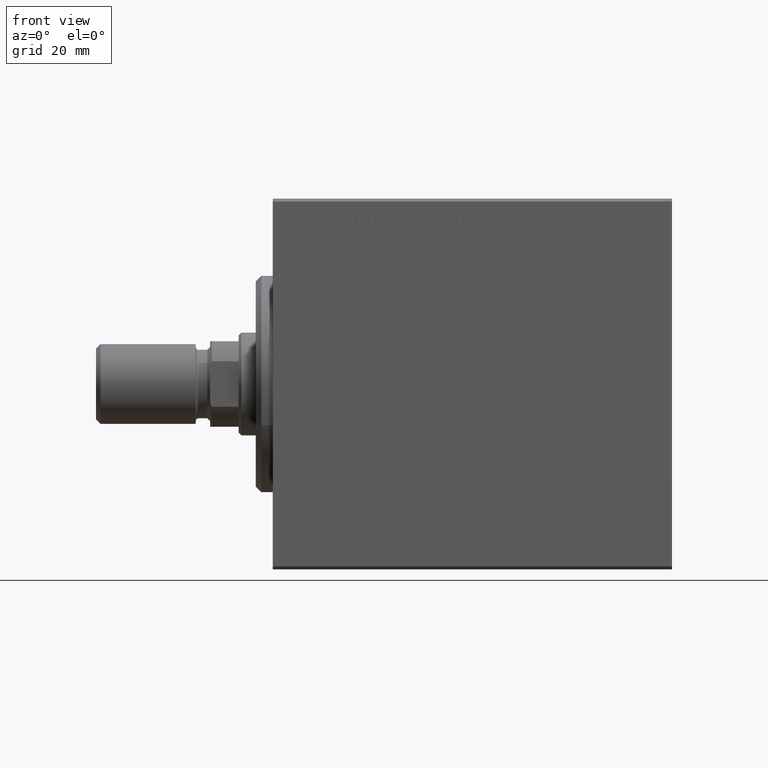
[diagram: clean part render]
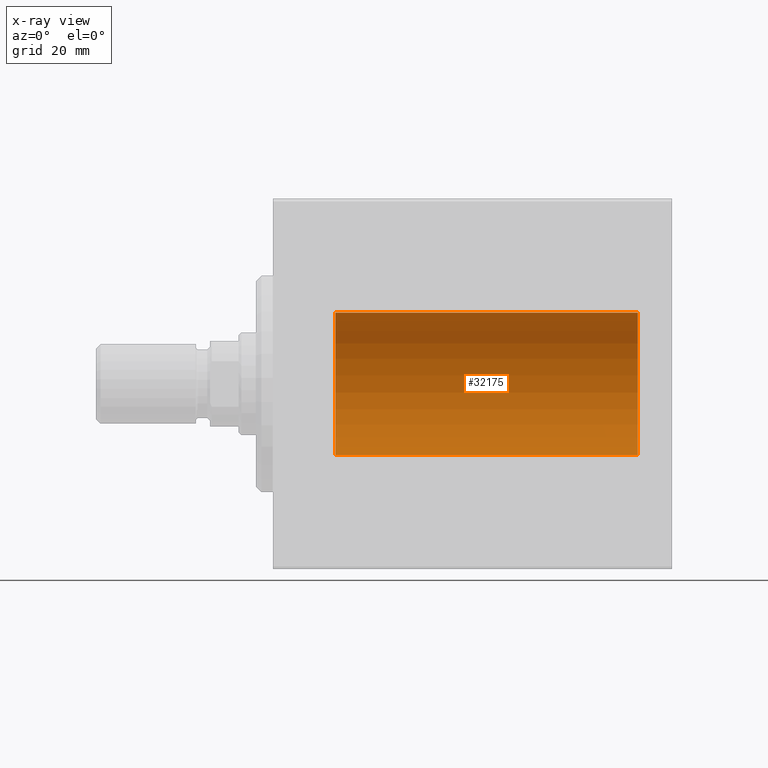
[diagram: x-ray — body ghosted, one internal face saturated and labeled with its STEP entity id]
A machine part, front view, then the same camera in x-ray: the body is ghosted and one INTERNAL B-rep face — a face not visible from any outside direction — is saturated and labeled: STEP entity #32175.
In plain terms, the highlighted cylindrical surface (partial cylindrical patch) has radius 12.5 mm, axis along (-1, -0, -0).
Its self-contained STEP definition (entity closure, byte-faithful):
#627 = ORIENTED_EDGE ( 'NONE', *, *, #16483, .T. ) ;
#658 = DIRECTION ( 'NONE',  ( 0.000000000000000000, 0.000000000000000000, 1.000000000000000000 ) ) ;
#2019 = CARTESIAN_POINT ( 'NONE',  ( 10.99999999999999645, 1.530808498934191521E-15, -12.50000000000000000 ) ) ;
#2084 = EDGE_LOOP ( 'NONE', ( #39493, #23463, #627, #3016 ) ) ;
#3016 = ORIENTED_EDGE ( 'NONE', *, *, #18761, .T. ) ;
#3535 = VERTEX_POINT ( 'NONE', #2019 ) ;
#4596 = AXIS2_PLACEMENT_3D ( 'NONE', #34592, #31237, #658 ) ;
#7416 = CIRCLE ( 'NONE', #4596, 12.50000000000000000 ) ;
#7875 = VECTOR ( 'NONE', #42435, 1000.000000000000000 ) ;
#8765 = LINE ( 'NONE', #40247, #16645 ) ;
#12865 = CARTESIAN_POINT ( 'NONE',  ( 10.99999999999999645, 0.000000000000000000, 12.50000000000000000 ) ) ;
#13706 = CARTESIAN_POINT ( 'NONE',  ( 64.00000000000000000, 0.000000000000000000, 0.000000000000000000 ) ) ;
#13937 = FACE_OUTER_BOUND ( 'NONE', #2084, .T. ) ;
#15180 = LINE ( 'NONE', #28810, #7875 ) ;
#15317 = EDGE_CURVE ( 'NONE', #32928, #40737, #20883, .T. ) ;
#16483 = EDGE_CURVE ( 'NONE', #32928, #27613, #8765, .T. ) ;
#16591 = DIRECTION ( 'NONE',  ( -1.000000000000000000, -0.000000000000000000, -0.000000000000000000 ) ) ;
#16645 = VECTOR ( 'NONE', #16591, 1000.000000000000000 ) ;
#17737 = DIRECTION ( 'NONE',  ( -1.000000000000000000, -0.000000000000000000, -0.000000000000000000 ) ) ;
#18761 = EDGE_CURVE ( 'NONE', #27613, #3535, #7416, .T. ) ;
#20519 = AXIS2_PLACEMENT_3D ( 'NONE', #13706, #17737, #38042 ) ;
#20883 = CIRCLE ( 'NONE', #34424, 12.50000000000000000 ) ;
#21145 = DIRECTION ( 'NONE',  ( 0.000000000000000000, 0.000000000000000000, 1.000000000000000000 ) ) ;
#23110 = CARTESIAN_POINT ( 'NONE',  ( 64.00000000000000000, 0.000000000000000000, 12.50000000000000000 ) ) ;
#23463 = ORIENTED_EDGE ( 'NONE', *, *, #15317, .F. ) ;
#25832 = CARTESIAN_POINT ( 'NONE',  ( 64.00000000000000000, 1.530808498934191521E-15, -12.50000000000000000 ) ) ;
#27613 = VERTEX_POINT ( 'NONE', #12865 ) ;
#28810 = CARTESIAN_POINT ( 'NONE',  ( 64.00000000000000000, 1.530808498934191521E-15, -12.50000000000000000 ) ) ;
#30519 = DIRECTION ( 'NONE',  ( -1.000000000000000000, 0.000000000000000000, 0.000000000000000000 ) ) ;
#31237 = DIRECTION ( 'NONE',  ( -1.000000000000000000, 0.000000000000000000, 0.000000000000000000 ) ) ;
#32175 = ADVANCED_FACE ( 'NONE', ( #13937 ), #40965, .F. ) ;
#32928 = VERTEX_POINT ( 'NONE', #23110 ) ;
#34424 = AXIS2_PLACEMENT_3D ( 'NONE', #37662, #30519, #21145 ) ;
#34592 = CARTESIAN_POINT ( 'NONE',  ( 10.99999999999999645, 0.000000000000000000, 0.000000000000000000 ) ) ;
#37662 = CARTESIAN_POINT ( 'NONE',  ( 64.00000000000000000, 0.000000000000000000, 0.000000000000000000 ) ) ;
#38042 = DIRECTION ( 'NONE',  ( 0.000000000000000000, 0.000000000000000000, 1.000000000000000000 ) ) ;
#39493 = ORIENTED_EDGE ( 'NONE', *, *, #40522, .F. ) ;
#40247 = CARTESIAN_POINT ( 'NONE',  ( 64.00000000000000000, 0.000000000000000000, 12.50000000000000000 ) ) ;
#40522 = EDGE_CURVE ( 'NONE', #40737, #3535, #15180, .T. ) ;
#40737 = VERTEX_POINT ( 'NONE', #25832 ) ;
#40965 = CYLINDRICAL_SURFACE ( 'NONE', #20519, 12.50000000000000000 ) ;
#42435 = DIRECTION ( 'NONE',  ( -1.000000000000000000, -0.000000000000000000, -0.000000000000000000 ) ) ;